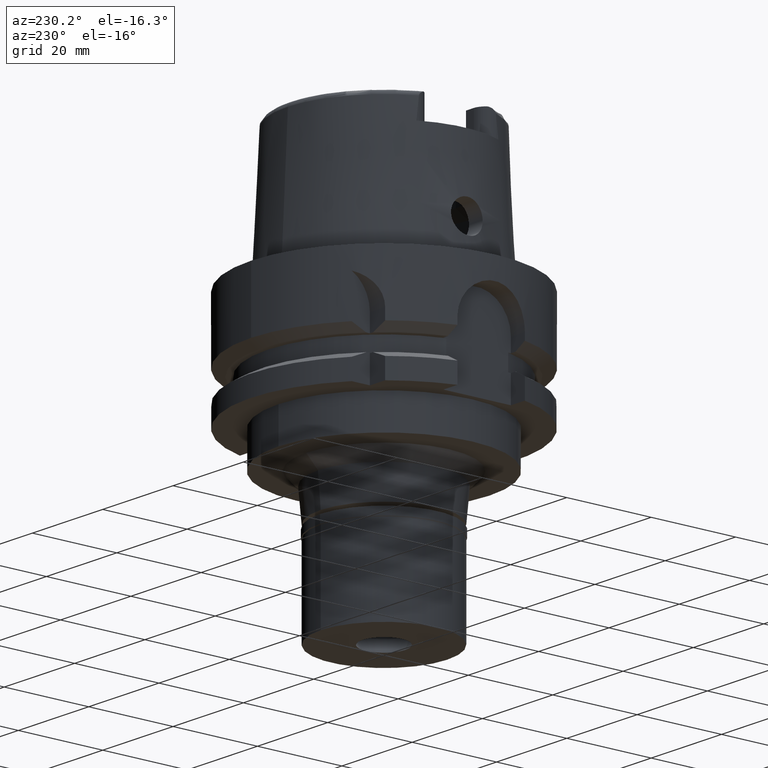
[diagram: clean part render]
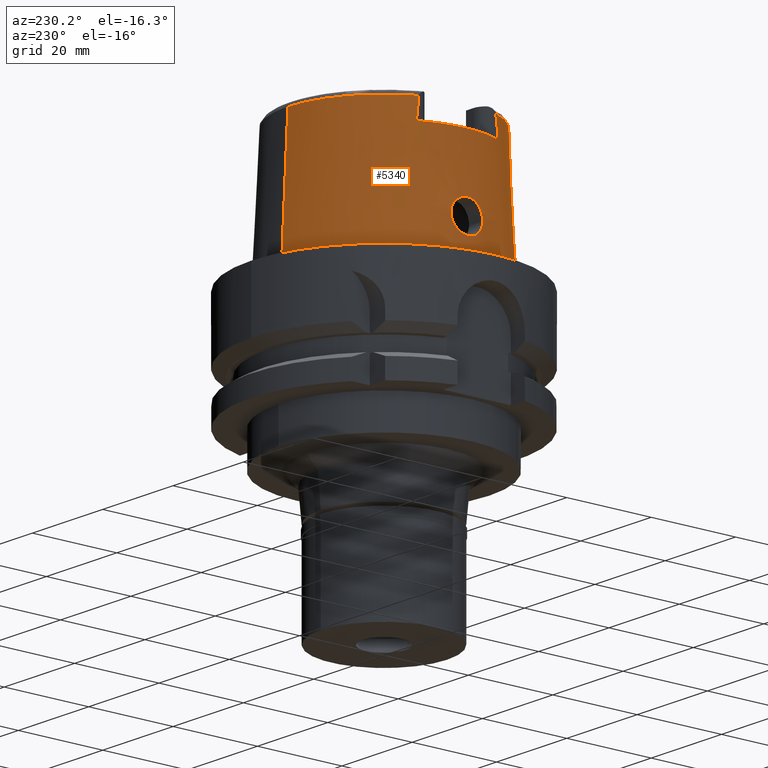
[diagram: same view with one face highlighted and labeled with its STEP entity id]
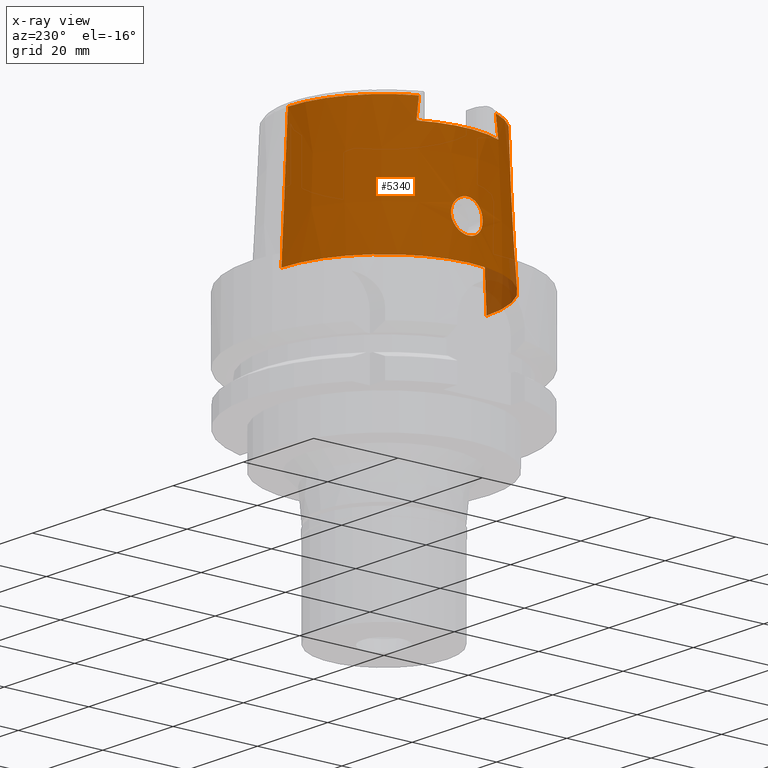
[diagram: x-ray of the same camera — body ghosted, the highlighted face saturated]
A machine part, auxiliary view. The second image highlights one B-rep face of the part: STEP entity #5340.
The next image is the same camera in x-ray: the body ghosted, the highlighted face saturated — about 3% of this face is hidden behind the body in this view.
In plain terms, the highlighted conical surface has half-angle 2.862 deg.
Its self-contained STEP definition (entity closure, byte-faithful):
#7 = CARTESIAN_POINT ( 'NONE',  ( -23.57895955476487870, 3.750927298222113127, 8.792163486865678834 ) ) ;
#21 = CARTESIAN_POINT ( 'NONE',  ( 0.0000000000000000000, 0.0000000000000000000, 30.85992712280000205 ) ) ;
#36 = CARTESIAN_POINT ( 'NONE',  ( -20.87000000000000099, 9.702213322398998585, 26.00000000000000000 ) ) ;
#41 = VERTEX_POINT ( 'NONE', #757 ) ;
#91 = CARTESIAN_POINT ( 'NONE',  ( 0.0000000000000000000, 24.31503482328999866, -1.705302565823999926E-12 ) ) ;
#96 = CARTESIAN_POINT ( 'NONE',  ( 0.0000000000000000000, 22.77198729362000051, 30.85992712280000205 ) ) ;
#182 = CARTESIAN_POINT ( 'NONE',  ( -20.86998097129999863, -9.136996581986000621, 30.65033329822000141 ) ) ;
#197 = AXIS2_PLACEMENT_3D ( 'NONE', #2141, #3468, #3855 ) ;
#209 = CARTESIAN_POINT ( 'NONE',  ( -23.67751368057999883, 0.2260753270825718864, 12.75000000000000000 ) ) ;
#232 = CARTESIAN_POINT ( 'NONE',  ( -24.00066161197143444, -1.367995425028282419, 5.508363811339407334 ) ) ;
#236 = CARTESIAN_POINT ( 'NONE',  ( -23.59781328509501819, 2.426824763247761751, 11.85950844891054601 ) ) ;
#239 = VERTEX_POINT ( 'NONE', #91 ) ;
#255 = CARTESIAN_POINT ( 'NONE',  ( -23.87289291431207161, -2.508806876880937953, 6.212594572644706048 ) ) ;
#288 = CARTESIAN_POINT ( 'NONE',  ( -23.71970986312708618, -3.325071978533417738, 7.265005943760386664 ) ) ;
#320 = CARTESIAN_POINT ( 'NONE',  ( -23.58290238976022835, -2.666583809924488513, 11.63663247062945771 ) ) ;
#323 = CARTESIAN_POINT ( 'NONE',  ( -23.53725266446230791, 3.558212763251322741, 10.21019173271391622 ) ) ;
#330 = DIRECTION ( 'NONE',  ( 0.0000000000000000000, 0.0000000000000000000, -1.000000000000000000 ) ) ;
#343 = CARTESIAN_POINT ( 'NONE',  ( 0.0000000000000000000, -24.31503482328999866, -9.841016890276999833E-13 ) ) ;
#349 = CARTESIAN_POINT ( 'NONE',  ( -23.69006554529059727, -3.444544033144122164, 7.517185883979182748 ) ) ;
#351 = CARTESIAN_POINT ( 'NONE',  ( -23.67865059023738539, 3.486938579573146679, 7.620207708567466653 ) ) ;
#357 = B_SPLINE_CURVE_WITH_KNOTS ( 'NONE', 3,
 ( #2120, #5595, #3919, #36 ),
 .UNSPECIFIED., .F., .F.,
 ( 4, 4 ),
 ( 0.0000000000000000000, 1.000000000000000000 ),
 .UNSPECIFIED. ) ;
#373 = CARTESIAN_POINT ( 'NONE',  ( -23.57207518760343845, -3.749505433568284918, 8.932751119538032469 ) ) ;
#376 = CARTESIAN_POINT ( 'NONE',  ( -23.67044392792388763, 3.516433789861050485, 7.696521018291968552 ) ) ;
#394 = DIRECTION ( 'NONE',  ( -0.0006539142454761719559, -0.9999997861980568503, 0.0000000000000000000 ) ) ;
#399 = FACE_OUTER_BOUND ( 'NONE', #2507, .T. ) ;
#402 = CARTESIAN_POINT ( 'NONE',  ( -23.62928563689280281, -1.858379320577957072, 12.25950176139448544 ) ) ;
#406 = CARTESIAN_POINT ( 'NONE',  ( -23.55476542909106996, 3.737328963455566200, 9.313827162573156571 ) ) ;
#409 = EDGE_CURVE ( 'NONE', #4727, #2015, #1961, .T. ) ;
#429 = CARTESIAN_POINT ( 'NONE',  ( -23.63312501103436603, 3.636982926136896666, 8.077545010114240753 ) ) ;
#458 = CARTESIAN_POINT ( 'NONE',  ( -20.86999859286000003, -9.150003160549998071, 30.54568941691999839 ) ) ;
#487 = CARTESIAN_POINT ( 'NONE',  ( -20.87000000000000099, -9.517135092919289718, 27.56041024058491118 ) ) ;
#515 = CARTESIAN_POINT ( 'NONE',  ( -20.86999859286000003, -9.145656142293999480, 30.58059766507999910 ) ) ;
#554 = AXIS2_PLACEMENT_3D ( 'NONE', #5010, #1103, #4598 ) ;
#589 = EDGE_CURVE ( 'NONE', #1557, #3368, #3572, .T. ) ;
#597 = LINE ( 'NONE', #2336, #2558 ) ;
#629 = CARTESIAN_POINT ( 'NONE',  ( -23.56129946628802685, 3.008091895112873004, 11.25243790297351865 ) ) ;
#637 = CARTESIAN_POINT ( 'NONE',  ( -20.86974104083000014, -9.111384060663999307, 30.85992586919000047 ) ) ;
#656 = VECTOR ( 'NONE', #1405, 1000.000000000000000 ) ;
#659 = CARTESIAN_POINT ( 'NONE',  ( -24.05252611746999847, -0.2323943551409173580, 5.249999999999994671 ) ) ;
#662 = CARTESIAN_POINT ( 'NONE',  ( -23.55028748976783604, 3.208066948075518177, 10.94568877154449105 ) ) ;
#690 = CARTESIAN_POINT ( 'NONE',  ( -23.89205484379341726, -2.376608158438146656, 6.098486464159195819 ) ) ;
#694 = CARTESIAN_POINT ( 'NONE',  ( -23.62968073050842932, 1.848606146313789056, 12.26338141550162142 ) ) ;
#715 = CARTESIAN_POINT ( 'NONE',  ( -23.82479609931920095, -2.812890583501228559, 6.508134107210825192 ) ) ;
#747 = CARTESIAN_POINT ( 'NONE',  ( -23.58250994557220181, -2.672894833222621003, 11.63023540369025710 ) ) ;
#753 = CARTESIAN_POINT ( 'NONE',  ( -23.54082695775694845, 3.424573562197534393, 10.52842566466042840 ) ) ;
#757 = CARTESIAN_POINT ( 'NONE',  ( -20.86999931535000385, -9.702216590572000143, 26.00000000000000000 ) ) ;
#783 = CARTESIAN_POINT ( 'NONE',  ( -23.58009369252419063, -3.744875546194933680, 8.789724731373910416 ) ) ;
#786 = CARTESIAN_POINT ( 'NONE',  ( -23.69258071849767333, 3.435692896020914322, 7.493589534003444186 ) ) ;
#806 = CARTESIAN_POINT ( 'NONE',  ( -23.53945573307791150, -3.629970040187103564, 9.949309905970839196 ) ) ;
#809 = CARTESIAN_POINT ( 'NONE',  ( -24.03356175903437730, 0.9594255538683363893, 5.338969207957949159 ) ) ;
#825 = EDGE_CURVE ( 'NONE', #239, #5326, #2317, .T. ) ;
#830 = CARTESIAN_POINT ( 'NONE',  ( -23.54591078898587142, -3.295218592971042693, 10.80659269994197480 ) ) ;
#832 = CARTESIAN_POINT ( 'NONE',  ( -23.82278482756676397, 2.816400151322039136, 6.522703353181141139 ) ) ;
#864 = CARTESIAN_POINT ( 'NONE',  ( -24.05252611746999847, 7.753366781647998699E-14, 5.250000000000000000 ) ) ;
#888 = CARTESIAN_POINT ( 'NONE',  ( -23.54857392969057273, 3.719355525935156948, 9.493310802543328819 ) ) ;
#901 = CARTESIAN_POINT ( 'NONE',  ( 0.0000000000000000000, 0.0000000000000000000, -1.705302565823999926E-12 ) ) ;
#903 = DIRECTION ( 'NONE',  ( 0.0000000000000000000, 0.0000000000000000000, -1.000000000000000000 ) ) ;
#911 = CARTESIAN_POINT ( 'NONE',  ( -23.67751368058000239, -0.4547567229900746355, 12.75000000000000355 ) ) ;
#927 = CARTESIAN_POINT ( 'NONE',  ( -20.86999859286000003, -9.150003160549998071, 30.54568941691999839 ) ) ;
#942 = CARTESIAN_POINT ( 'NONE',  ( -23.67751368057999883, 0.0000000000000000000, 12.75000000000000000 ) ) ;
#986 = VERTEX_POINT ( 'NONE', #927 ) ;
#1026 = CARTESIAN_POINT ( 'NONE',  ( -20.86979790994000084, 9.115619351700999573, 30.82499135211999786 ) ) ;
#1092 = CARTESIAN_POINT ( 'NONE',  ( -23.67751368057999883, 0.0000000000000000000, 12.75000000000000000 ) ) ;
#1103 = DIRECTION ( 'NONE',  ( 0.0000000000000000000, 0.0000000000000000000, -1.000000000000000000 ) ) ;
#1125 = CARTESIAN_POINT ( 'NONE',  ( -23.64897823268839616, 1.417183674417388017, 12.47190986531401791 ) ) ;
#1150 = CARTESIAN_POINT ( 'NONE',  ( -23.60599179969886308, -3.704784070771527382, 8.406459561279197246 ) ) ;
#1153 = CARTESIAN_POINT ( 'NONE',  ( -23.66780029284925746, 0.8226947894054786881, 12.66069321087433863 ) ) ;
#1172 = CARTESIAN_POINT ( 'NONE',  ( -23.58018033235097022, -2.710407413411034749, 11.59166946485328609 ) ) ;
#1176 = CARTESIAN_POINT ( 'NONE',  ( -23.66476485918339989, 0.9442135534439417555, 12.63141035091936182 ) ) ;
#1184 = CARTESIAN_POINT ( 'NONE',  ( 0.0000000000000000000, 0.0000000000000000000, 26.00000000000000000 ) ) ;
#1203 = CARTESIAN_POINT ( 'NONE',  ( -23.70962967206857996, -3.367468527842155446, 7.347886983808462169 ) ) ;
#1208 = CARTESIAN_POINT ( 'NONE',  ( -23.56486941232646615, 3.749359414319258121, 9.075421560386146780 ) ) ;
#1233 = FACE_BOUND ( 'NONE', #2564, .T. ) ;
#1237 = CARTESIAN_POINT ( 'NONE',  ( -23.60632830135501337, -2.281182173431300697, 11.97684334199852607 ) ) ;
#1240 = CARTESIAN_POINT ( 'NONE',  ( -23.99208104883833315, 1.475353205062315043, 5.552369612468805116 ) ) ;
#1246 = CARTESIAN_POINT ( 'NONE',  ( -20.86999931535000385, -9.702216590572000143, 26.00000000000000000 ) ) ;
#1260 = CARTESIAN_POINT ( 'NONE',  ( -23.58554706408866153, -3.738636685782220859, 8.702376248450402585 ) ) ;
#1263 = CARTESIAN_POINT ( 'NONE',  ( -23.65932489018537765, 3.554992492726700704, 7.803398320003727129 ) ) ;
#1288 = CARTESIAN_POINT ( 'NONE',  ( -23.99463088207153305, 1.444171884195827982, 5.539232278168508827 ) ) ;
#1310 = CARTESIAN_POINT ( 'NONE',  ( -23.64767239167342794, -1.449886048971779973, 12.45838106371914122 ) ) ;
#1312 = CARTESIAN_POINT ( 'NONE',  ( -23.79078302713048743, 2.992119357052430928, 6.736192817278303657 ) ) ;
#1361 = CARTESIAN_POINT ( 'NONE',  ( -23.66766913166236819, -0.9509886345893513449, 12.66623858133161029 ) ) ;
#1381 = ORIENTED_EDGE ( 'NONE', *, *, #2621, .F. ) ;
#1382 = CIRCLE ( 'NONE', #1475, 22.77198729362000051 ) ;
#1405 = DIRECTION ( 'NONE',  ( 0.0000000000000000000, 0.04993926899645239476, -0.9987522562738468945 ) ) ;
#1454 = CARTESIAN_POINT ( 'NONE',  ( -24.04786986167213314, -0.4699710035691589960, 5.271665901421162204 ) ) ;
#1475 = AXIS2_PLACEMENT_3D ( 'NONE', #21, #903, #394 ) ;
#1517 = CARTESIAN_POINT ( 'NONE',  ( -23.54218586256063972, 3.384838469017812823, 10.61576442719120017 ) ) ;
#1540 = CARTESIAN_POINT ( 'NONE',  ( -23.99895644017046337, -1.389973022374168643, 5.517107920312701808 ) ) ;
#1557 = VERTEX_POINT ( 'NONE', #2475 ) ;
#1571 = CARTESIAN_POINT ( 'NONE',  ( -23.85980946822700233, -2.594267859068388304, 6.292075785624059669 ) ) ;
#1604 = CARTESIAN_POINT ( 'NONE',  ( -23.53831675277155000, -3.548212272070281781, 10.21635173981712086 ) ) ;
#1608 = CARTESIAN_POINT ( 'NONE',  ( -23.58458564469063035, 2.639961356102008772, 11.66334351916221124 ) ) ;
#1622 = ORIENTED_EDGE ( 'NONE', *, *, #2460, .F. ) ;
#1632 = CARTESIAN_POINT ( 'NONE',  ( -23.54101716806759370, -3.659154140712785885, 9.829494775100535264 ) ) ;
#1634 = CARTESIAN_POINT ( 'NONE',  ( -23.65046512089815778, 1.379061347226039347, 12.48728572786650659 ) ) ;
#1662 = CARTESIAN_POINT ( 'NONE',  ( -23.53847029397648782, -3.576996712420539293, 10.12758035939361534 ) ) ;
#1668 = CARTESIAN_POINT ( 'NONE',  ( -23.84679198431689073, 2.675420555674440148, 6.372319597105351896 ) ) ;
#1692 = CARTESIAN_POINT ( 'NONE',  ( -23.61594593297333233, -2.109831037918189267, 12.10018184552281895 ) ) ;
#1694 = CARTESIAN_POINT ( 'NONE',  ( -23.84155958928077368, 2.706687274999588499, 6.404473670779920802 ) ) ;
#1707 = ORIENTED_EDGE ( 'NONE', *, *, #409, .F. ) ;
#1718 = CARTESIAN_POINT ( 'NONE',  ( -23.85671003037250770, -2.613896029802846410, 6.311109701598092592 ) ) ;
#1720 = CARTESIAN_POINT ( 'NONE',  ( -23.95828273931024555, 1.839086485738821608, 5.729863525068006780 ) ) ;
#1776 = CARTESIAN_POINT ( 'NONE',  ( -23.55819729710067634, 3.744124598469498633, 9.224192125699406830 ) ) ;
#1780 = AXIS2_PLACEMENT_3D ( 'NONE', #901, #5211, #3029 ) ;
#1793 = B_SPLINE_CURVE_WITH_KNOTS ( 'NONE', 3,
 ( #3203, #515, #182, #2371, #1929, #3665 ),
 .UNSPECIFIED., .F., .F.,
 ( 4, 1, 1, 4 ),
 ( 0.0000000000000000000, 0.3333333333333000081, 0.6666666666667000474, 1.000000000000000000 ),
 .UNSPECIFIED. ) ;
#1845 = ORIENTED_EDGE ( 'NONE', *, *, #4046, .F. ) ;
#1856 = CARTESIAN_POINT ( 'NONE',  ( -20.87000000000000099, 9.702213322398998585, 26.00000000000000000 ) ) ;
#1859 = EDGE_CURVE ( 'NONE', #3447, #2103, #1382, .T. ) ;
#1889 = CARTESIAN_POINT ( 'NONE',  ( -20.86998013696999976, 9.136999223136001547, 30.65036981048000087 ) ) ;
#1897 = ORIENTED_EDGE ( 'NONE', *, *, #4741, .T. ) ;
#1899 = CARTESIAN_POINT ( 'NONE',  ( 0.0000000000000000000, 22.77198729362000051, 30.85992712280000205 ) ) ;
#1907 = CARTESIAN_POINT ( 'NONE',  ( -23.67751368057999883, 0.0000000000000000000, 12.75000000000000000 ) ) ;
#1929 = CARTESIAN_POINT ( 'NONE',  ( -20.86979783655000276, -9.115619586387998297, 30.82499216416000110 ) ) ;
#1959 = CARTESIAN_POINT ( 'NONE',  ( -23.65930107858486053, 1.127142642443779819, 12.57716292002513292 ) ) ;
#1961 = B_SPLINE_CURVE_WITH_KNOTS ( 'NONE', 3,
 ( #4071, #659, #1454, #3196, #2764, #3309, #3743, #2394, #232, #1540, #3279, #5055, #4942, #2339, #4099, #5022, #690, #4183, #255, #2007, #1571, #1718, #5082, #2036, #715, #2444, #4637, #4208, #288, #1203, #5536, #4721, #349, #5110, #5561, #1150, #4291, #1260, #783, #2502, #373, #3778, #3421, #2144, #1632, #806, #1662, #1604, #5509, #2961, #2930, #3362, #4694, #2114, #830, #5617, #3391, #4266, #5172, #3337, #4239, #1172, #2897, #4663, #747, #2473, #320, #2065, #2090, #3832, #2527, #5144, #1237, #3859, #2873, #5593, #2983, #1692, #4745, #2554, #4323, #402, #3891, #3446, #3807, #2610, #4851, #3473, #5226, #1310, #1361, #911, #942 ),
 .UNSPECIFIED., .F., .F.,
 ( 4, 2, 2, 1, 1, 1, 2, 2, 2, 2, 2, 1, 1, 2, 2, 2, 2, 1, 2, 2, 2, 2, 1, 2, 2, 2, 2, 1, 1, 1, 2, 2, 2, 2, 2, 1, 1, 1, 1, 2, 2, 2, 2, 2, 1, 1, 1, 2, 2, 2, 2, 1, 1, 2, 2, 4 ),
 ( 0.0000000000000000000, 0.06249999999974355236, 0.09374999999961529384, 0.1093749999995511507, 0.1171874999995190236, 0.1210937499995029948, 0.1230468749994949734, 0.1249999999994869659, 0.1874999999992315869, 0.2187499999991039945, 0.2343749999990402122, 0.2421874999990082655, 0.2460937499989921673, 0.2480468749989840904, 0.2499999999989759858, 0.3124999999987204125, 0.3437499999985927368, 0.3593749999985289545, 0.3671874999984972576, 0.3749999999984655052, 0.4374999999982123744, 0.4687499999980858090, 0.4843749999980227483, 0.4921874999979912180, 0.4999999999979597431, 0.5624999999977094989, 0.5937499999975845988, 0.6093749999975222043, 0.6171874999974910070, 0.6210937499974754639, 0.6230468749974673592, 0.6249999999974593656, 0.6874999999972080111, 0.7187499999970823339, 0.7343749999970193842, 0.7421874999969879649, 0.7460937499969723108, 0.7480468749969645392, 0.7490234374969606534, 0.7495117187469588771, 0.7499999999969569897, 0.7812499999973345766, 0.7968749999975232035, 0.8046874999976175724, 0.8085937499976648679, 0.8105468749976885157, 0.8115234374977003950, 0.8120117187477062792, 0.8124999999977121634, 0.8437499999980939691, 0.8593749999982848164, 0.8671874999983801846, 0.8710937499984279242, 0.8730468749984517940, 0.8749999999984756638, 1.000000000000000000 ),
 .UNSPECIFIED. ) ;
#1986 = CARTESIAN_POINT ( 'NONE',  ( -23.53988870697690672, 3.456599517579613146, 10.45411991341223867 ) ) ;
#2007 = CARTESIAN_POINT ( 'NONE',  ( -23.86694420352784718, -2.548344584811855107, 6.248507219031225191 ) ) ;
#2015 = VERTEX_POINT ( 'NONE', #1907 ) ;
#2036 = CARTESIAN_POINT ( 'NONE',  ( -23.85341217148187098, -2.634619083672701478, 6.331416078823806082 ) ) ;
#2039 = CARTESIAN_POINT ( 'NONE',  ( -23.60620736992117585, 2.284508704680232594, 11.97633801538963816 ) ) ;
#2049 = CARTESIAN_POINT ( 'NONE',  ( 0.0000000000000000000, -22.77198729362000051, 30.85992712280000205 ) ) ;
#2065 = CARTESIAN_POINT ( 'NONE',  ( -23.58296776843147669, -2.665532646192952271, 11.63769556221808088 ) ) ;
#2068 = CARTESIAN_POINT ( 'NONE',  ( -23.64019199243682934, 1.628413804258675768, 12.38023120971756086 ) ) ;
#2090 = CARTESIAN_POINT ( 'NONE',  ( -23.58581145454514783, -2.622610673676261328, 11.68321803401843439 ) ) ;
#2092 = CARTESIAN_POINT ( 'NONE',  ( -23.70458907457615894, 3.389112185936390187, 7.390181548883791862 ) ) ;
#2103 = VERTEX_POINT ( 'NONE', #637 ) ;
#2114 = CARTESIAN_POINT ( 'NONE',  ( -23.54137862932925884, -3.394367717504898518, 10.60651887548844385 ) ) ;
#2120 = CARTESIAN_POINT ( 'NONE',  ( -20.87000040551000168, 9.149999089200999691, 30.54560915661999942 ) ) ;
#2126 = EDGE_CURVE ( 'NONE', #41, #5544, #5124, .T. ) ;
#2135 = ORIENTED_EDGE ( 'NONE', *, *, #3911, .T. ) ;
#2141 = CARTESIAN_POINT ( 'NONE',  ( 0.0000000000000000000, 0.0000000000000000000, 15.42996356139999925 ) ) ;
#2144 = CARTESIAN_POINT ( 'NONE',  ( -23.54841489980281821, -3.728587765168852375, 9.469058319499351839 ) ) ;
#2146 = CARTESIAN_POINT ( 'NONE',  ( -23.59407079032972021, 3.731836402377214590, 8.558108669015906500 ) ) ;
#2171 = CARTESIAN_POINT ( 'NONE',  ( -23.99361602683587336, 1.456633948716162807, 5.544459058986564770 ) ) ;
#2229 = LINE ( 'NONE', #96, #656 ) ;
#2317 = CIRCLE ( 'NONE', #1780, 24.31503482328999866 ) ;
#2336 = CARTESIAN_POINT ( 'NONE',  ( 0.0000000000000000000, -22.77198729362000051, 30.85992712280000205 ) ) ;
#2339 = CARTESIAN_POINT ( 'NONE',  ( -23.96284730913273009, -1.801203767029049052, 5.701748759927372845 ) ) ;
#2371 = CARTESIAN_POINT ( 'NONE',  ( -20.86989310983999957, -9.124125563086000312, 30.75513688717999727 ) ) ;
#2394 = CARTESIAN_POINT ( 'NONE',  ( -24.00454485655285097, -1.316620318861517980, 5.488484387585115698 ) ) ;
#2397 = CARTESIAN_POINT ( 'NONE',  ( -23.61901328988699333, 2.053665642662643176, 12.13768038257689952 ) ) ;
#2444 = CARTESIAN_POINT ( 'NONE',  ( -23.79642462929559699, -2.970103850218433816, 6.697980581903047792 ) ) ;
#2460 = EDGE_CURVE ( 'NONE', #41, #986, #4454, .T. ) ;
#2473 = CARTESIAN_POINT ( 'NONE',  ( -23.58270642385793536, -2.669734819589568264, 11.63344281528285151 ) ) ;
#2475 = CARTESIAN_POINT ( 'NONE',  ( -20.86974110883999955, 9.111383541020998678, 30.85992743411999939 ) ) ;
#2502 = CARTESIAN_POINT ( 'NONE',  ( -23.57520702855856243, -3.748048845736424273, 8.875729093286757632 ) ) ;
#2504 = CARTESIAN_POINT ( 'NONE',  ( -23.54534257891515736, 3.701526665721723841, 9.613253826874423424 ) ) ;
#2507 = EDGE_LOOP ( 'NONE', ( #3013, #5004, #1897, #2135, #5034, #4638, #4828, #1381, #1622, #2686 ) ) ;
#2527 = CARTESIAN_POINT ( 'NONE',  ( -23.59775228162580163, -2.428185069179079836, 11.85918257349523230 ) ) ;
#2529 = CARTESIAN_POINT ( 'NONE',  ( -23.68133050984255661, 3.477138586965608624, 7.595703282376581100 ) ) ;
#2554 = CARTESIAN_POINT ( 'NONE',  ( -23.61653688467347934, -2.099092393174293747, 12.10746140582775254 ) ) ;
#2558 = VECTOR ( 'NONE', #5342, 1000.000000000000000 ) ;
#2559 = CARTESIAN_POINT ( 'NONE',  ( -23.65034627075796081, 3.584037883707545280, 7.894925590064973520 ) ) ;
#2564 = EDGE_LOOP ( 'NONE', ( #1845, #1707 ) ) ;
#2588 = CARTESIAN_POINT ( 'NONE',  ( -23.77663875030907903, 3.064735049072845108, 6.835513851643160166 ) ) ;
#2610 = CARTESIAN_POINT ( 'NONE',  ( -23.64453172688222082, -1.526159952918312079, 12.42557779143662877 ) ) ;
#2617 = CARTESIAN_POINT ( 'NONE',  ( -20.87000000000000099, -9.333063949578622953, 29.07564004622490472 ) ) ;
#2621 = EDGE_CURVE ( 'NONE', #986, #2103, #1793, .T. ) ;
#2686 = ORIENTED_EDGE ( 'NONE', *, *, #2126, .T. ) ;
#2764 = CARTESIAN_POINT ( 'NONE',  ( -24.02808077453117264, -0.9465570585118188163, 5.369316004044855539 ) ) ;
#2792 = CARTESIAN_POINT ( 'NONE',  ( -23.57124709138810914, 2.846272814420200525, 11.45696250202839472 ) ) ;
#2873 = CARTESIAN_POINT ( 'NONE',  ( -23.61190142423199845, -2.182750114025797217, 12.04951863577712601 ) ) ;
#2876 = CARTESIAN_POINT ( 'NONE',  ( -23.61819952679682189, 2.068680046771974812, 12.12780172311934557 ) ) ;
#2897 = CARTESIAN_POINT ( 'NONE',  ( -23.58153265304659740, -2.688620916439956154, 11.61418410996646244 ) ) ;
#2901 = CARTESIAN_POINT ( 'NONE',  ( -23.54726840778275232, 3.267641128258861993, 10.84339756218103368 ) ) ;
#2930 = CARTESIAN_POINT ( 'NONE',  ( -23.53927098983502120, -3.482069455046768347, 10.39203227127830864 ) ) ;
#2932 = CARTESIAN_POINT ( 'NONE',  ( -23.56637528954188809, 3.749845172328615917, 9.044099915111376120 ) ) ;
#2961 = CARTESIAN_POINT ( 'NONE',  ( -23.53908678934683607, -3.490778745237721470, 10.37018024308081010 ) ) ;
#2963 = CARTESIAN_POINT ( 'NONE',  ( -23.62262547672696300, 3.665414759173968307, 8.198702699457756538 ) ) ;
#2983 = CARTESIAN_POINT ( 'NONE',  ( -23.61542790114792112, -2.119229680454127074, 12.09377852935242359 ) ) ;
#2987 = CARTESIAN_POINT ( 'NONE',  ( -23.97350783670803764, 1.684420460984933365, 5.649088090192124767 ) ) ;
#3013 = ORIENTED_EDGE ( 'NONE', *, *, #4056, .F. ) ;
#3015 = CARTESIAN_POINT ( 'NONE',  ( -23.74863796504813962, 3.198034340660085295, 7.041136532066337494 ) ) ;
#3029 = DIRECTION ( 'NONE',  ( 0.0000000000000000000, 1.000000000000000000, 0.0000000000000000000 ) ) ;
#3046 = CARTESIAN_POINT ( 'NONE',  ( -23.88113256534634843, 2.468812113651790874, 6.162955231768321163 ) ) ;
#3196 = CARTESIAN_POINT ( 'NONE',  ( -24.03390109427851229, -0.8273020464117327721, 5.340384815624962478 ) ) ;
#3203 = CARTESIAN_POINT ( 'NONE',  ( -20.86999859286000003, -9.150003160549998071, 30.54568941691999839 ) ) ;
#3245 = CARTESIAN_POINT ( 'NONE',  ( -24.05252611746999847, 7.753366781647998699E-14, 5.250000000000000000 ) ) ;
#3249 = CARTESIAN_POINT ( 'NONE',  ( -20.86989332434000133, 9.124125752746000018, 30.75512690570999652 ) ) ;
#3257 = CARTESIAN_POINT ( 'NONE',  ( -23.54025440468285524, 3.443478764481262999, 10.48501549963098078 ) ) ;
#3279 = CARTESIAN_POINT ( 'NONE',  ( -23.99781056472019714, -1.404615436133864970, 5.522987242150099618 ) ) ;
#3309 = CARTESIAN_POINT ( 'NONE',  ( -24.01760419898595700, -1.124665066212998443, 5.422086833821150087 ) ) ;
#3312 = CARTESIAN_POINT ( 'NONE',  ( -23.64860678872540589, 1.426569602905444878, 12.46805987810363447 ) ) ;
#3337 = CARTESIAN_POINT ( 'NONE',  ( -23.57535480380715143, -2.788497805611136027, 11.50758511404826478 ) ) ;
#3340 = CARTESIAN_POINT ( 'NONE',  ( -23.62022553402831448, 2.031197887424751602, 12.15234693854326764 ) ) ;
#3362 = CARTESIAN_POINT ( 'NONE',  ( -23.53940085637601243, -3.476215216294423538, 10.40658782308573294 ) ) ;
#3365 = CARTESIAN_POINT ( 'NONE',  ( -23.62526857962636484, 1.935284861493610675, 12.21221080280875704 ) ) ;
#3368 = VERTEX_POINT ( 'NONE', #5126 ) ;
#3390 = CIRCLE ( 'NONE', #554, 22.77198729362000407 ) ;
#3391 = CARTESIAN_POINT ( 'NONE',  ( -23.56103852657632913, -3.024819577623788280, 11.22052191794529108 ) ) ;
#3393 = CARTESIAN_POINT ( 'NONE',  ( -23.84603952595488607, 2.679932476376028827, 6.376925294400439981 ) ) ;
#3421 = CARTESIAN_POINT ( 'NONE',  ( -23.55696462331458463, -3.750664740742886583, 9.227487637115689978 ) ) ;
#3424 = CARTESIAN_POINT ( 'NONE',  ( -23.75852267028831477, 3.151589039483773114, 6.967744113448186560 ) ) ;
#3446 = CARTESIAN_POINT ( 'NONE',  ( -23.63954868162352341, -1.640423479150251884, 12.37263937525172253 ) ) ;
#3447 = VERTEX_POINT ( 'NONE', #2049 ) ;
#3448 = CARTESIAN_POINT ( 'NONE',  ( -23.98511209891468710, 1.557094388725292822, 5.588440198013159055 ) ) ;
#3468 = DIRECTION ( 'NONE',  ( 0.0000000000000000000, 0.0000000000000000000, -1.000000000000000000 ) ) ;
#3473 = CARTESIAN_POINT ( 'NONE',  ( -23.64702628548673857, -1.465821072801270164, 12.45165322799966212 ) ) ;
#3477 = CARTESIAN_POINT ( 'NONE',  ( -23.94704935542019086, 1.943594401853255160, 5.790547084592252425 ) ) ;
#3572 = B_SPLINE_CURVE_WITH_KNOTS ( 'NONE', 3,
 ( #4487, #1026, #3249, #1889, #3623, #5364 ),
 .UNSPECIFIED., .F., .F.,
 ( 4, 1, 1, 4 ),
 ( 0.0000000000000000000, 0.3333333333333000081, 0.6666666666667000474, 1.000000000000000000 ),
 .UNSPECIFIED. ) ;
#3623 = CARTESIAN_POINT ( 'NONE',  ( -20.87000040551000168, 9.145651821177999352, 30.58051936379000324 ) ) ;
#3665 = CARTESIAN_POINT ( 'NONE',  ( -20.86974104083000014, -9.111384060663999307, 30.85992586919000047 ) ) ;
#3695 = B_SPLINE_CURVE_WITH_KNOTS ( 'NONE', 3,
 ( #1092, #209, #5026, #1153, #1176, #1959, #3696, #3748, #1634, #4584, #1125, #3312, #4614, #2068, #5539, #694, #3365, #5058, #3340, #2397, #2876, #4641, #4212, #2039, #236, #5432, #5085, #3782, #5513, #1608, #2792, #629, #662, #2901, #4668, #1517, #753, #3257, #4162, #1986, #4242, #323, #5229, #2504, #888, #406, #1776, #4269, #1208, #2932, #7, #2146, #2963, #429, #2559, #1263, #376, #5114, #351, #4696, #2529, #786, #2092, #3835, #5174, #3864, #3015, #4327, #3424, #3894, #5566, #2588, #1312, #4747, #832, #4355, #1694, #5619, #3393, #1668, #3046, #5147, #3477, #1720, #2987, #4800, #3448, #5199, #1240, #2171, #1288, #4723, #809, #4774, #864 ),
 .UNSPECIFIED., .F., .F.,
 ( 4, 2, 2, 1, 1, 1, 2, 2, 2, 2, 1, 1, 2, 2, 2, 1, 1, 2, 2, 2, 2, 1, 1, 1, 2, 2, 2, 2, 1, 2, 2, 2, 2, 1, 1, 1, 2, 2, 2, 2, 1, 1, 2, 2, 2, 1, 1, 1, 2, 2, 2, 2, 2, 1, 1, 2, 2, 4 ),
 ( 0.0000000000000000000, 0.06250000000000445477, 0.09375000000000666134, 0.1093750000000076883, 0.1171875000000080908, 0.1210937500000082573, 0.1230468750000083683, 0.1250000000000084655, 0.1562500000000112410, 0.1718750000000126288, 0.1796875000000133504, 0.1835937500000136835, 0.1855468750000138223, 0.1875000000000139888, 0.2187500000000141553, 0.2343750000000142664, 0.2421875000000143219, 0.2460937500000141553, 0.2500000000000139888, 0.3125000000000121569, 0.3437500000000112133, 0.3593750000000107692, 0.3671875000000105471, 0.3710937500000106581, 0.3730468750000104916, 0.3750000000000102696, 0.4375000000000067168, 0.4687500000000049405, 0.4843750000000039968, 0.4921875000000037748, 0.5000000000000035527, 0.5625000000000038858, 0.5937500000000042188, 0.6093750000000044409, 0.6171875000000045519, 0.6210937500000046629, 0.6230468750000046629, 0.6250000000000046629, 0.6562500000000058842, 0.6718750000000064393, 0.6796875000000067724, 0.6835937500000069944, 0.6855468750000071054, 0.6875000000000072164, 0.7187500000000093259, 0.7343750000000104361, 0.7421875000000111022, 0.7460937500000114353, 0.7480468750000114353, 0.7500000000000114353, 0.8125000000000101030, 0.8437500000000094369, 0.8593750000000091038, 0.8671875000000089928, 0.8710937500000088818, 0.8730468750000087708, 0.8750000000000087708, 1.000000000000000000 ),
 .UNSPECIFIED. ) ;
#3696 = CARTESIAN_POINT ( 'NONE',  ( -23.65634153076063839, 1.218766898829676926, 12.54745994632217965 ) ) ;
#3743 = CARTESIAN_POINT ( 'NONE',  ( -24.01192938723229986, -1.213524032965468624, 5.450814241283156392 ) ) ;
#3748 = CARTESIAN_POINT ( 'NONE',  ( -23.65249032429709786, 1.325656163776855800, 12.50813453085681992 ) ) ;
#3778 = CARTESIAN_POINT ( 'NONE',  ( -23.57065320241458650, -3.749899714935048589, 8.959519910369659002 ) ) ;
#3782 = CARTESIAN_POINT ( 'NONE',  ( -23.58660584941678806, 2.608373951119886680, 11.69427555544633357 ) ) ;
#3807 = CARTESIAN_POINT ( 'NONE',  ( -23.64291650410915935, -1.563741870381759380, 12.40851987663654121 ) ) ;
#3832 = CARTESIAN_POINT ( 'NONE',  ( -23.59424595361786103, -2.485971098961782921, 11.80824841067654596 ) ) ;
#3835 = CARTESIAN_POINT ( 'NONE',  ( -23.72473149529852421, 3.304626414038017934, 7.226382657604404791 ) ) ;
#3847 = VERTEX_POINT ( 'NONE', #1899 ) ;
#3855 = DIRECTION ( 'NONE',  ( 0.0000000000000000000, -1.000000000000000000, 0.0000000000000000000 ) ) ;
#3859 = CARTESIAN_POINT ( 'NONE',  ( -23.61000028983651688, -2.216497942922996511, 12.02495602725288215 ) ) ;
#3864 = CARTESIAN_POINT ( 'NONE',  ( -23.74293677030359362, 3.224044902504502819, 7.084502469350403508 ) ) ;
#3891 = CARTESIAN_POINT ( 'NONE',  ( -23.63712029738038467, -1.693571408488229624, 12.34636702145365561 ) ) ;
#3894 = CARTESIAN_POINT ( 'NONE',  ( -23.76053400013048034, 3.142014949137010404, 6.952973004179401784 ) ) ;
#3911 = EDGE_CURVE ( 'NONE', #3847, #239, #2229, .T. ) ;
#3919 = CARTESIAN_POINT ( 'NONE',  ( -20.87000000000000099, 9.517059732168780428, 27.56089567595799039 ) ) ;
#4046 = EDGE_CURVE ( 'NONE', #2015, #4727, #3695, .T. ) ;
#4056 = EDGE_CURVE ( 'NONE', #3368, #5544, #357, .T. ) ;
#4071 = CARTESIAN_POINT ( 'NONE',  ( -24.05252611746999847, 7.753366781647998699E-14, 5.250000000000000000 ) ) ;
#4099 = CARTESIAN_POINT ( 'NONE',  ( -23.92682080160383506, -2.112243621713619124, 5.899032256572120048 ) ) ;
#4149 = EDGE_CURVE ( 'NONE', #3447, #5326, #597, .T. ) ;
#4162 = CARTESIAN_POINT ( 'NONE',  ( -23.54003193179278597, 3.451378055116752108, 10.46647007067043411 ) ) ;
#4183 = CARTESIAN_POINT ( 'NONE',  ( -23.88456796705849428, -2.429595498448522406, 6.142635906703879378 ) ) ;
#4208 = CARTESIAN_POINT ( 'NONE',  ( -23.74008511948047939, -3.236742457188103828, 7.102309188435692811 ) ) ;
#4212 = CARTESIAN_POINT ( 'NONE',  ( -23.61179605320195307, 2.185804131837075559, 12.04956198508237541 ) ) ;
#4239 = CARTESIAN_POINT ( 'NONE',  ( -23.57753095649091790, -2.753184201566273970, 11.54650206875119700 ) ) ;
#4242 = CARTESIAN_POINT ( 'NONE',  ( -23.53983125699495815, 3.458739732202949835, 10.44902758143994781 ) ) ;
#4266 = CARTESIAN_POINT ( 'NONE',  ( -23.56847992517027279, -2.900909824668212345, 11.37732201341264116 ) ) ;
#4269 = CARTESIAN_POINT ( 'NONE',  ( -23.56213334257427761, 3.747691643290815833, 9.134876893216450355 ) ) ;
#4276 = DIRECTION ( 'NONE',  ( -0.9068002397791221636, -0.4215605829967106200, 0.0000000000000000000 ) ) ;
#4291 = CARTESIAN_POINT ( 'NONE',  ( -23.59720941734936872, -3.721807741521957702, 8.526097269263248180 ) ) ;
#4313 = CONICAL_SURFACE ( 'NONE', #197, 23.54351105844999736, 0.04996004983832824653 ) ;
#4323 = CARTESIAN_POINT ( 'NONE',  ( -23.62332985289024023, -1.975464506949346832, 12.19086202623328496 ) ) ;
#4327 = CARTESIAN_POINT ( 'NONE',  ( -23.75552231526414459, 3.165811150089825166, 6.989857191960700433 ) ) ;
#4355 = CARTESIAN_POINT ( 'NONE',  ( -23.83529395297660258, 2.743739743411905962, 6.443431201419633325 ) ) ;
#4454 = B_SPLINE_CURVE_WITH_KNOTS ( 'NONE', 3,
 ( #1246, #487, #2617, #458 ),
 .UNSPECIFIED., .F., .F.,
 ( 4, 4 ),
 ( 0.0000000000000000000, 1.000000000000000000 ),
 .UNSPECIFIED. ) ;
#4487 = CARTESIAN_POINT ( 'NONE',  ( -20.86974110883999955, 9.111383541020998678, 30.85992743411999939 ) ) ;
#4584 = CARTESIAN_POINT ( 'NONE',  ( -23.64957583369137595, 1.401936700334394770, 12.47809447372486957 ) ) ;
#4598 = DIRECTION ( 'NONE',  ( -0.9164655183265837390, 0.4001136759951928745, 0.0000000000000000000 ) ) ;
#4614 = CARTESIAN_POINT ( 'NONE',  ( -23.64464117598575399, 1.526120244108621460, 12.42691339433818598 ) ) ;
#4637 = CARTESIAN_POINT ( 'NONE',  ( -23.75395512269788156, -3.173140871141205466, 6.997937417939271043 ) ) ;
#4638 = ORIENTED_EDGE ( 'NONE', *, *, #4149, .F. ) ;
#4641 = CARTESIAN_POINT ( 'NONE',  ( -23.61772619508842297, 2.077369067777232736, 12.12203405100448528 ) ) ;
#4663 = CARTESIAN_POINT ( 'NONE',  ( -23.58221572158580415, -2.677627688506083903, 11.62542289301330811 ) ) ;
#4668 = CARTESIAN_POINT ( 'NONE',  ( -23.54371715008759480, 3.347375724140742914, 10.69140445791927263 ) ) ;
#4694 = CARTESIAN_POINT ( 'NONE',  ( -23.53948390639377664, -3.472661449007622636, 10.41533093480247096 ) ) ;
#4696 = CARTESIAN_POINT ( 'NONE',  ( -23.68031568869287184, 3.480862574565448675, 7.604950480376475141 ) ) ;
#4721 = CARTESIAN_POINT ( 'NONE',  ( -23.69313375880593853, -3.432763238865844002, 7.490159005609552167 ) ) ;
#4723 = CARTESIAN_POINT ( 'NONE',  ( -23.99504040596203680, 1.439116031145255770, 5.537124200216764436 ) ) ;
#4727 = VERTEX_POINT ( 'NONE', #3245 ) ;
#4741 = EDGE_CURVE ( 'NONE', #1557, #3847, #3390, .T. ) ;
#4745 = CARTESIAN_POINT ( 'NONE',  ( -23.61629264461015509, -2.103534125646550290, 12.10445786992070794 ) ) ;
#4747 = CARTESIAN_POINT ( 'NONE',  ( -23.81210068669867752, 2.876147240910833069, 6.592916214493446780 ) ) ;
#4774 = CARTESIAN_POINT ( 'NONE',  ( -24.05252611747000202, 0.4683252949326703329, 5.250000000000009770 ) ) ;
#4800 = CARTESIAN_POINT ( 'NONE',  ( -23.97831203943442446, 1.633210794702584900, 5.623869763798184707 ) ) ;
#4828 = ORIENTED_EDGE ( 'NONE', *, *, #1859, .T. ) ;
#4851 = CARTESIAN_POINT ( 'NONE',  ( -23.64629594862869766, -1.483709031251017940, 12.44403895304960805 ) ) ;
#4942 = CARTESIAN_POINT ( 'NONE',  ( -23.98212111261563706, -1.601774290197998996, 5.603574434449526187 ) ) ;
#5004 = ORIENTED_EDGE ( 'NONE', *, *, #589, .F. ) ;
#5010 = CARTESIAN_POINT ( 'NONE',  ( 0.0000000000000000000, 0.0000000000000000000, 30.85992712280000205 ) ) ;
#5022 = CARTESIAN_POINT ( 'NONE',  ( -23.91362599871011696, -2.217829087557541712, 5.973133189571705692 ) ) ;
#5026 = CARTESIAN_POINT ( 'NONE',  ( -23.67508533364730638, 0.4617557829054354523, 12.72951573258230162 ) ) ;
#5029 = AXIS2_PLACEMENT_3D ( 'NONE', #1184, #330, #4276 ) ;
#5034 = ORIENTED_EDGE ( 'NONE', *, *, #825, .T. ) ;
#5055 = CARTESIAN_POINT ( 'NONE',  ( -23.99710510837301669, -1.413539611081301439, 5.526609186403374174 ) ) ;
#5058 = CARTESIAN_POINT ( 'NONE',  ( -23.62299530023406646, 1.979164646010809436, 12.18552236736905492 ) ) ;
#5082 = CARTESIAN_POINT ( 'NONE',  ( -23.85463447310192464, -2.626968580574345236, 6.323879754544984522 ) ) ;
#5085 = CARTESIAN_POINT ( 'NONE',  ( -23.58870886370971576, 2.575235456193580852, 11.72622642392149395 ) ) ;
#5110 = CARTESIAN_POINT ( 'NONE',  ( -23.65897103302763327, -3.561230544190266745, 7.795051808895300915 ) ) ;
#5114 = CARTESIAN_POINT ( 'NONE',  ( -23.67616444222808525, 3.495966733350369005, 7.643096655180703358 ) ) ;
#5124 = CIRCLE ( 'NONE', #5029, 23.01499170873999134 ) ;
#5126 = CARTESIAN_POINT ( 'NONE',  ( -20.87000040551000168, 9.149999089200999691, 30.54560915661999942 ) ) ;
#5144 = CARTESIAN_POINT ( 'NONE',  ( -23.60405401611326326, -2.320557321901378423, 11.94612298546082840 ) ) ;
#5147 = CARTESIAN_POINT ( 'NONE',  ( -23.91009924687551802, 2.257930149670690056, 5.995529946937981691 ) ) ;
#5172 = CARTESIAN_POINT ( 'NONE',  ( -23.57112881965374029, -2.857358610568068613, 11.42957079233981155 ) ) ;
#5174 = CARTESIAN_POINT ( 'NONE',  ( -23.73180061664008988, 3.274025842075007908, 7.170344273207406083 ) ) ;
#5199 = CARTESIAN_POINT ( 'NONE',  ( -23.98841056750247347, 1.519210388071044804, 5.571324814776531298 ) ) ;
#5211 = DIRECTION ( 'NONE',  ( 0.0000000000000000000, 0.0000000000000000000, 1.000000000000000000 ) ) ;
#5226 = CARTESIAN_POINT ( 'NONE',  ( -23.64750745268628762, -1.453964309439303992, 12.45666446313573239 ) ) ;
#5229 = CARTESIAN_POINT ( 'NONE',  ( -23.53833747306364899, 3.630006929182380215, 9.972146772348878585 ) ) ;
#5326 = VERTEX_POINT ( 'NONE', #343 ) ;
#5340 = ADVANCED_FACE ( 'NONE', ( #399, #1233 ), #4313, .T. ) ;
#5342 = DIRECTION ( 'NONE',  ( 0.0000000000000000000, -0.04993926899645239476, -0.9987522562738468945 ) ) ;
#5364 = CARTESIAN_POINT ( 'NONE',  ( -20.87000040551000168, 9.149999089200999691, 30.54560915661999942 ) ) ;
#5432 = CARTESIAN_POINT ( 'NONE',  ( -23.59361347770569850, 2.496548393665785959, 11.79934636524981784 ) ) ;
#5509 = CARTESIAN_POINT ( 'NONE',  ( -23.53873118347090099, -3.510595914692852038, 10.31906474871335000 ) ) ;
#5513 = CARTESIAN_POINT ( 'NONE',  ( -23.58520360947347072, 2.630334721169810930, 11.67284019203635914 ) ) ;
#5536 = CARTESIAN_POINT ( 'NONE',  ( -23.69971063668734956, -3.407034536595910268, 7.432964917784754988 ) ) ;
#5539 = CARTESIAN_POINT ( 'NONE',  ( -23.63244295389306515, 1.792264772387298422, 12.29455393383105744 ) ) ;
#5544 = VERTEX_POINT ( 'NONE', #1856 ) ;
#5561 = CARTESIAN_POINT ( 'NONE',  ( -23.63536138727445035, -3.634264278750201527, 8.043190611481250585 ) ) ;
#5566 = CARTESIAN_POINT ( 'NONE',  ( -23.76168217092441992, 3.136524179938768420, 6.944574239299550200 ) ) ;
#5593 = CARTESIAN_POINT ( 'NONE',  ( -23.61423340963081330, -2.140834064395216618, 12.07891505930152576 ) ) ;
#5595 = CARTESIAN_POINT ( 'NONE',  ( -20.87000000000000099, 9.332993010268779699, 29.07609872816465213 ) ) ;
#5617 = CARTESIAN_POINT ( 'NONE',  ( -23.55675130732228695, -3.098426305231676725, 11.11593717316577923 ) ) ;
#5619 = CARTESIAN_POINT ( 'NONE',  ( -23.84424723489668807, 2.690654671347298965, 6.387924880741726597 ) ) ;